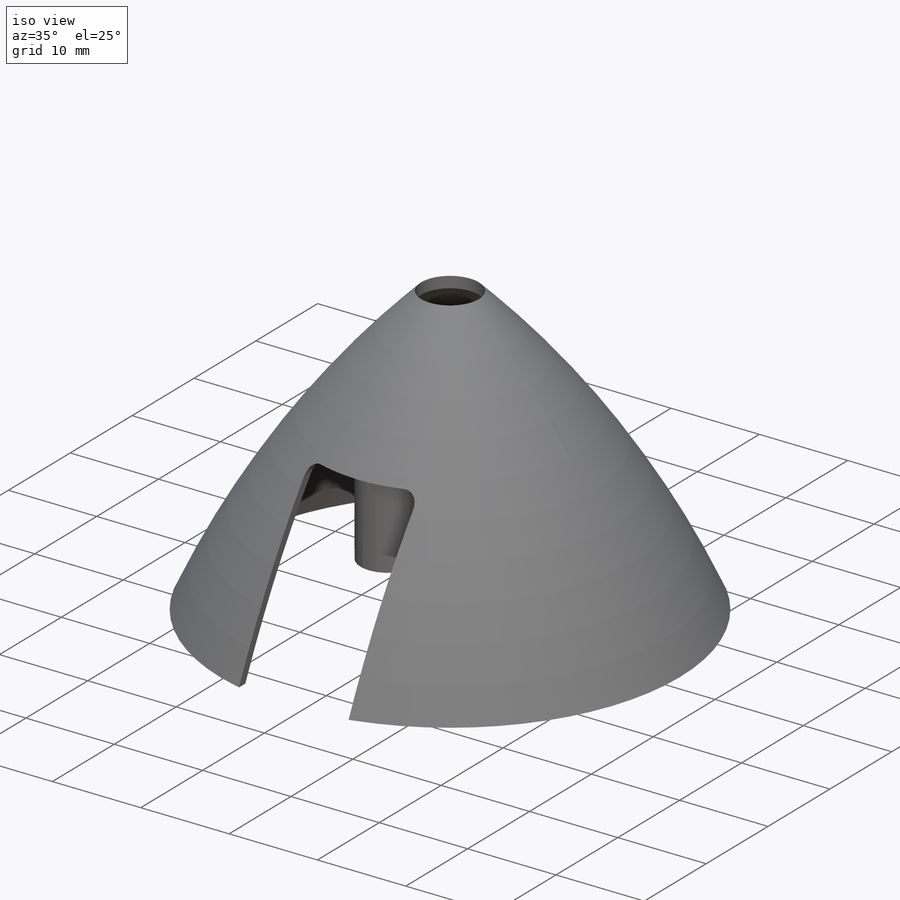
[diagram: iso view]
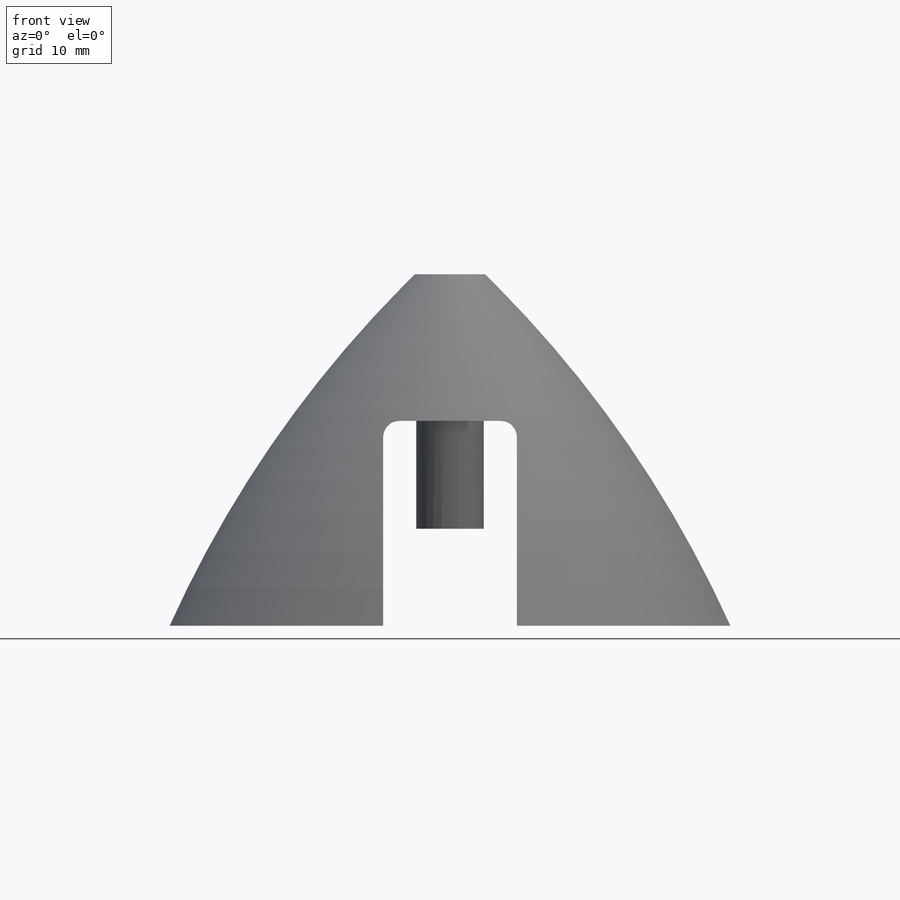
[diagram: front view]
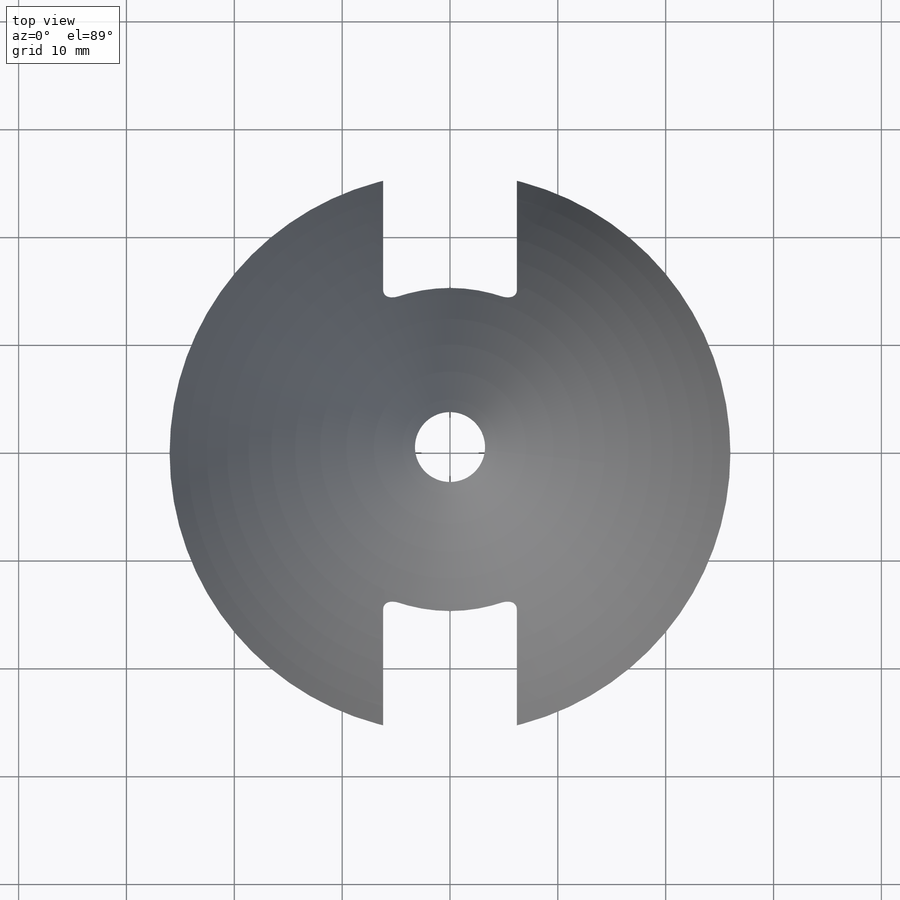
[diagram: top view]
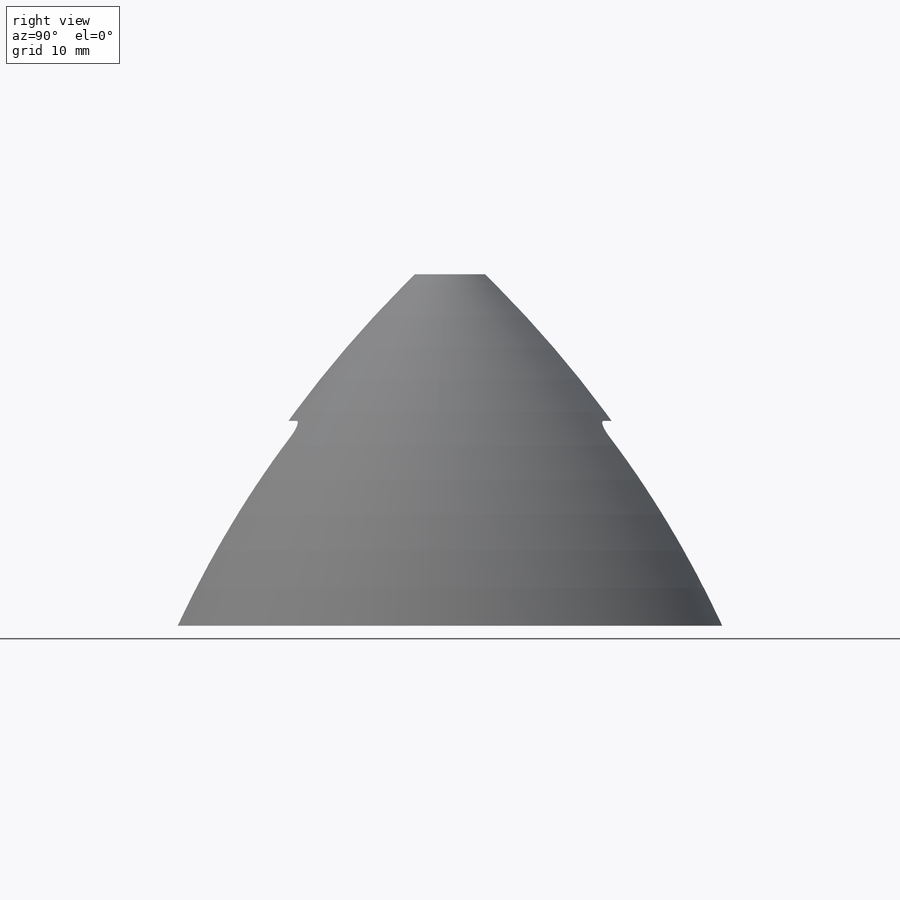
[diagram: right view]
SOLIDWORKS PART (.sldprt)
format: sldprt  version: not decoded by parser v0  size: 448,000 bytes
history: native  units: mm
features: sketch x12, extrude x6, cut_extrude x4, plane x3, material x1, revolve x1, shell x1, chamfer x1 (+12 scaffold rows collapsed)
feature tree (41):
  scaffold x12  (default folders/planes/origin — collapsed)
  material  "Material <not specified>"
  plane  "Plane1"  Offset=32.6mm
  plane  "Plane2"  Offset=9mm
  plane  "Plane3"  Offset=18mm
  sketch  "Sketch1"  dims[D1=3.25mm D2=18.0mm D3=15.7mm D4=~47.672831mm]
  revolve  "Cone"  Angle=360deg
  shell  "Shell1"  Thickness=0.9mm
  sketch  "Sketch2"  dims[c1.D2=1.5mm c1.D1=~24.550575mm c2.D2=~8.404547mm c2.D1=12.4mm c2.D3=19.0mm c2.D4=~21.857722mm]
  cut_extrude  "Prop Holes"  [1 undecoded]
  sketch  "Sketch4"  dims[D1=6.5mm]
  cut_extrude  "Tip Hole"  [1 undecoded]
  sketch  "Sketch5"  dims[c1.D1=6.25mm c1.D3=2.0mm c1.D4=3.85mm c1.D2=20.0mm c2.D3=~7.08458mm c2.D5=13.1mm]
  extrude  "Screw Bosses"  [1 undecoded]
  cut_extrude  "Cut-Extrude1"  [1 undecoded]
  sketch  "Sketch5<4>"  dims[D1=4.0mm]
  cut_extrude  "Screw Counterbore"  [1 undecoded]
  sketch  "Sketch5<3>"  dims[D19=2.0mm]
  sketch  "Sketch6"  dims[D1=~17.762455mm]
  extrude  "Wings"  Depth=1.2mm
  extrude  "Mirror Wings"  [1 undecoded]
  sketch  "Sketch6<2>"  dims[D1=1.2mm]
  sketch  "Sketch7"  dims[c1.D1=~2.219504mm c2.D1=1.2mm]
  sketch  "Sketch9"  dims[D1=48.24mm]
  extrude  "Ridge platform"  [1 undecoded]
  sketch  "Sketch10"  dims[D1=50.0mm]
  extrude  "Ridge"  Depth=1mm
  sketch  "Sketch11"  dims[D1=20.0mm]
  extrude  "Support"  Depth=0.2mm
  chamfer  "Chamfer1"  Distance=0.2mm Angle=45deg
decode coverage: 18 of 25 modeling features carry decoded parameters
note: ~ marks probable driven/reference dimensions
note: 7 parameter values undecoded
summary: no parameter record found for 7 features
note: suppression state not decoded; provenance and decode notes live in map.json
